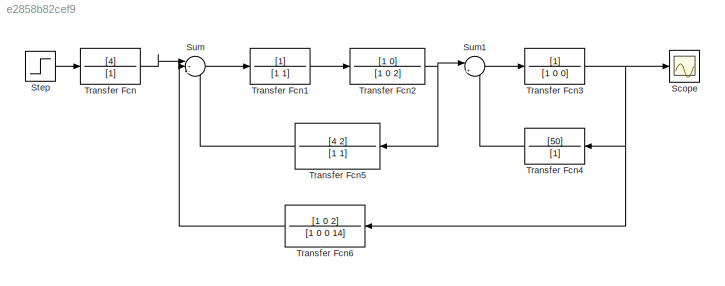
MODEL slx_e2858b82cef9
KIND model
CONFIG AbsTol = auto
CONFIG EnableMultiTasking = off
CONFIG FixedStep = auto
CONFIG MaxStep = auto
CONFIG MinStep = auto
CONFIG RelTol = 1e-3
CONFIG SampleTimeConstraint = Unconstrained
CONFIG SolverName = VariableStepAuto
CONFIG StartTime = 0.0
CONFIG StopTime = 10.0
BLOCK [Scope] Scope
  Floating = off
  NumInputPorts = 1
  ScopeSpecificationString = Simulink.scopes.TimeScopeBlockCfg('CurrentConfiguration', extmgr.ConfigurationSet(extmgr.Configuration('Core','General UI',true),extmgr.Configuration('Core','Source UI',true),extmgr.Configuration('Sources','WiredSimulink',true),extmgr.Configuration('Visuals','Time Domain',true,'SerializedDisplays',{struct('MinYLimReal','-363154244959929079169024.00000','MaxYLimReal','3268388204639362450718720.0000...<+1546ch>
BLOCK [Step] Step
  SampleTime = 0
BLOCK [Sum] Sum
  Inputs = |+--
BLOCK [Sum] Sum1
  Inputs = |++
BLOCK [TransferFcn] Transfer Fcn
  Denominator = [1]
  Numerator = [4]
BLOCK [TransferFcn] Transfer Fcn1
  Denominator = [1 1]
BLOCK [TransferFcn] Transfer Fcn2
  Denominator = [1 0 2]
  Numerator = [1 0]
BLOCK [TransferFcn] Transfer Fcn3
  Denominator = [1 0 0]
BLOCK [TransferFcn] Transfer Fcn4
  Denominator = [1]
  NameLocation = top
  Numerator = [50]
BLOCK [TransferFcn] Transfer Fcn5
  Numerator = [4 2]
BLOCK [TransferFcn] Transfer Fcn6
  Denominator = [1 0 0 14]
  Numerator = [1 0 2]
LINE Step:1 -> Transfer Fcn:1
LINE Sum1:1 -> Transfer Fcn3:1
LINE Sum:1 -> Transfer Fcn1:1
LINE Transfer Fcn1:1 -> Transfer Fcn2:1
NET Transfer Fcn2:1 -> Sum1:1, Transfer Fcn5:1
NET Transfer Fcn3:1 -> Scope:1, Transfer Fcn4:1, Transfer Fcn6:1
LINE Transfer Fcn4:1 -> Sum1:2
LINE Transfer Fcn5:1 -> Sum:3
LINE Transfer Fcn6:1 -> Sum:2
LINE Transfer Fcn:1 -> Sum:1
note: NET lines group one-source signal fan-out (src -> all destinations, sorted); 1:1 wires keep LINE
